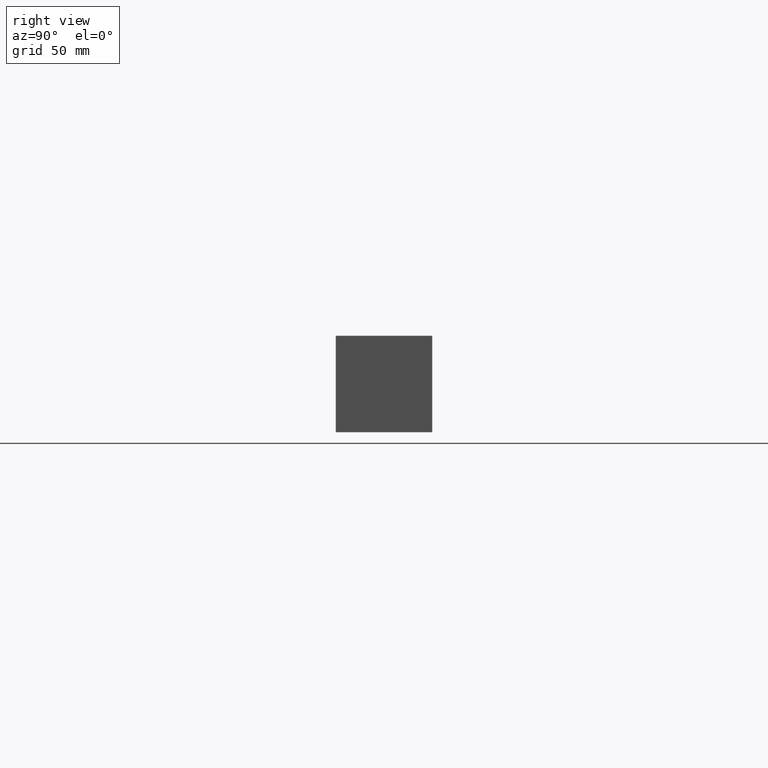
[diagram: clean part render]
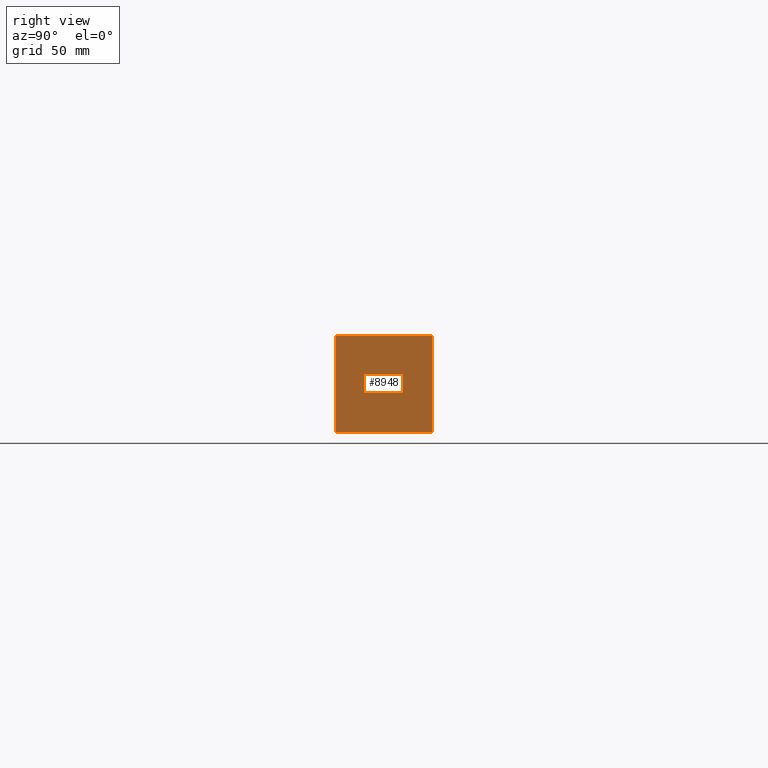
[diagram: same view with one face highlighted and labeled with its STEP entity id]
A machine part, right view. The second image highlights one B-rep face of the part: STEP entity #8948.
In plain terms, the highlighted planar face has unit normal (1, 0, 0).
Its self-contained STEP definition (entity closure, byte-faithful):
#690=PLANE('',#9564);
#1162=FACE_OUTER_BOUND('',#1700,.T.);
#1700=EDGE_LOOP('',(#7998,#7999,#8000,#8001));
#1948=LINE('',#14098,#2652);
#2416=LINE('',#15986,#3120);
#2417=LINE('',#15989,#3121);
#2418=LINE('',#15990,#3122);
#2652=VECTOR('',#9894,10.);
#3120=VECTOR('',#11466,10.);
#3121=VECTOR('',#11469,10.);
#3122=VECTOR('',#11470,10.);
#3739=VERTEX_POINT('',#14095);
#3740=VERTEX_POINT('',#14097);
#4252=VERTEX_POINT('',#15984);
#4253=VERTEX_POINT('',#15988);
#4738=EDGE_CURVE('',#3739,#3740,#1948,.T.);
#5510=EDGE_CURVE('',#4252,#3740,#2416,.T.);
#5511=EDGE_CURVE('',#4253,#4252,#2417,.T.);
#5512=EDGE_CURVE('',#4253,#3739,#2418,.T.);
#7998=ORIENTED_EDGE('',*,*,#5511,.T.);
#7999=ORIENTED_EDGE('',*,*,#5510,.T.);
#8000=ORIENTED_EDGE('',*,*,#4738,.F.);
#8001=ORIENTED_EDGE('',*,*,#5512,.F.);
#8948=ADVANCED_FACE('',(#1162),#690,.T.);
#9564=AXIS2_PLACEMENT_3D('',#15987,#11467,#11468);
#9894=DIRECTION('',(0.,1.,0.));
#11466=DIRECTION('',(0.,0.,1.));
#11467=DIRECTION('center_axis',(1.,0.,0.));
#11468=DIRECTION('ref_axis',(0.,1.,0.));
#11469=DIRECTION('',(0.,1.,0.));
#11470=DIRECTION('',(0.,0.,1.));
#14095=CARTESIAN_POINT('',(377.825,0.,50.8));
#14097=CARTESIAN_POINT('',(377.825,50.8,50.8));
#14098=CARTESIAN_POINT('',(377.825,0.,50.8));
#15984=CARTESIAN_POINT('',(377.825,50.8,0.));
#15986=CARTESIAN_POINT('',(377.825,50.8,0.));
#15987=CARTESIAN_POINT('Origin',(377.825,0.,0.));
#15988=CARTESIAN_POINT('',(377.825,0.,0.));
#15989=CARTESIAN_POINT('',(377.825,0.,0.));
#15990=CARTESIAN_POINT('',(377.825,0.,0.));